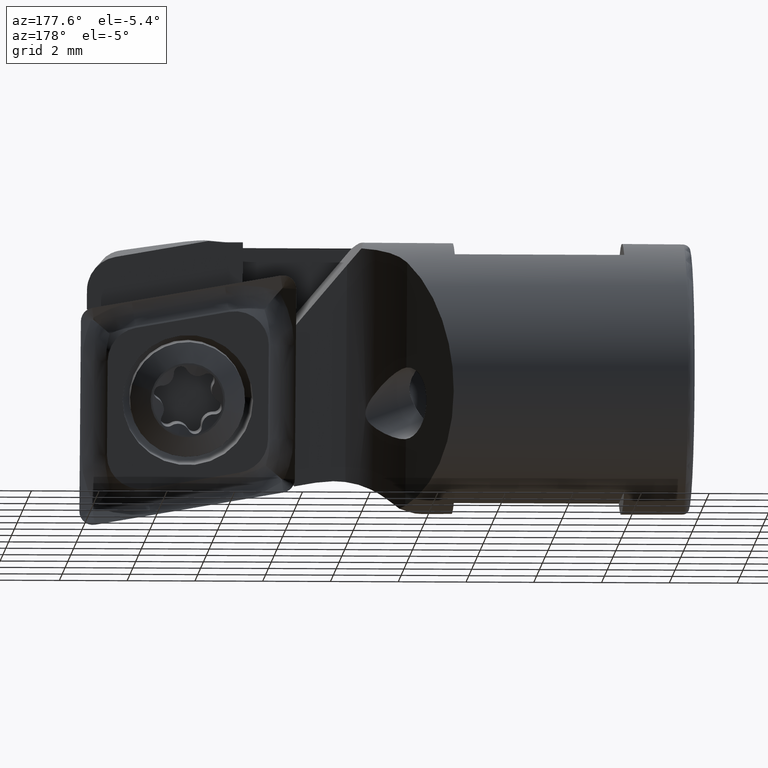
[diagram: clean part render]
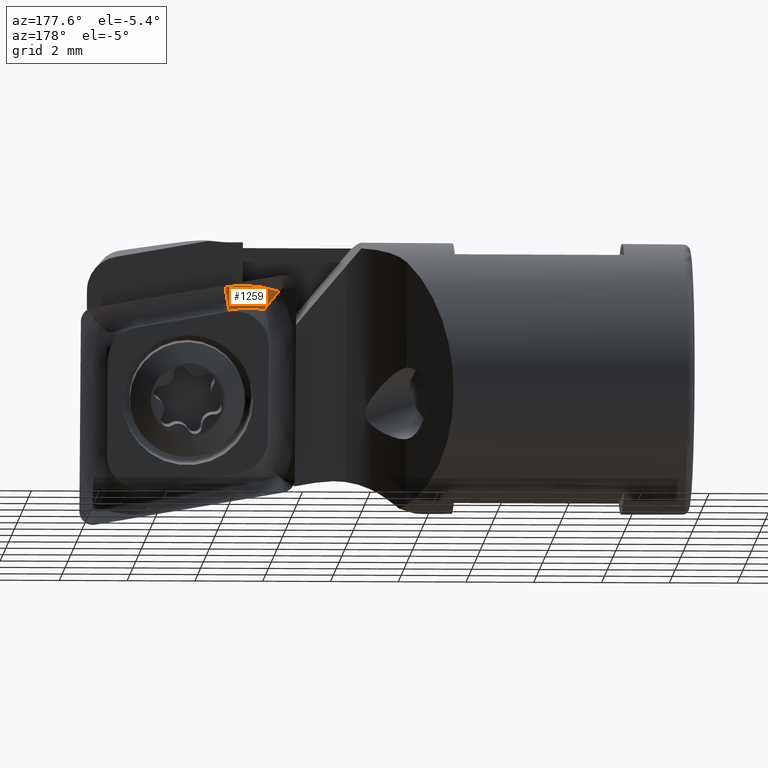
[diagram: same view with one face highlighted and labeled with its STEP entity id]
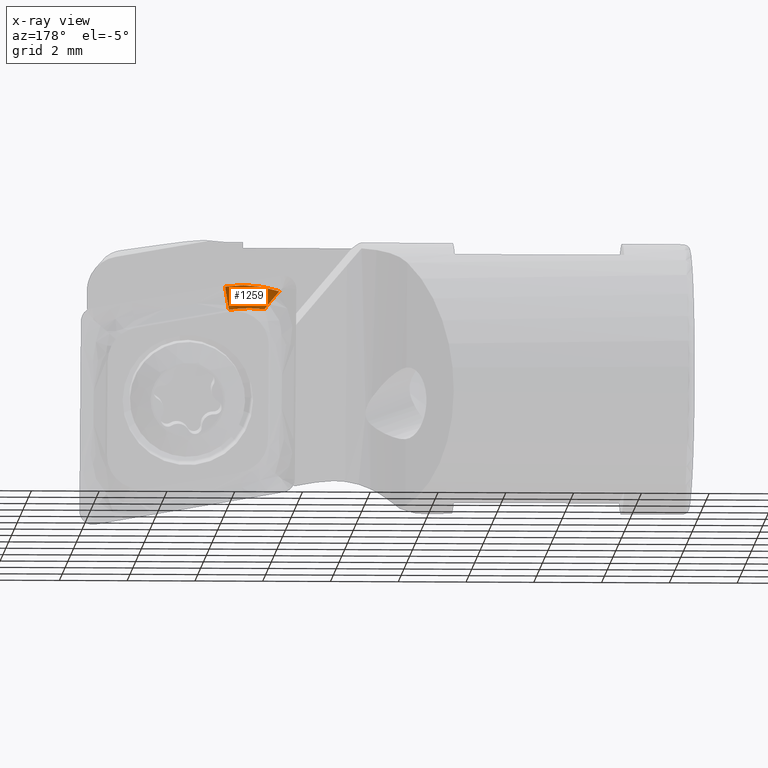
[diagram: x-ray of the same camera — body ghosted, the highlighted face saturated]
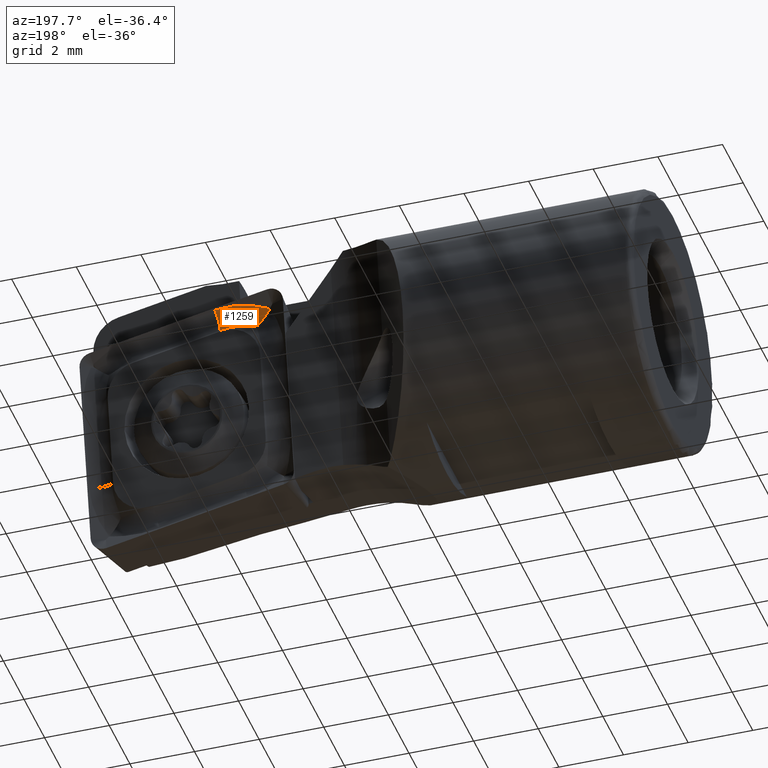
[diagram: same view with one face highlighted and labeled with its STEP entity id]
A machine part, auxiliary view. The second image highlights one B-rep face of the part: STEP entity #1259.
The next image is the same camera in x-ray: the body ghosted, the highlighted face saturated — about 0% of this face is hidden behind the body in this view.
A second angle (auxiliary view) of the same face is appended — the face is thin or edge-on in the first view.
In plain terms, the highlighted face is a freeform B-spline surface patch.
Its self-contained STEP definition (entity closure, byte-faithful):
#66 = EDGE_CURVE ( 'NONE', #2985, #3708, #4449, .T. ) ;
#71 = CARTESIAN_POINT ( 'NONE',  ( 3.410992432308228100, -0.02886751738946589900, 1.348541647578908500 ) ) ;
#286 = CARTESIAN_POINT ( 'NONE',  ( 3.291657324559015100, -0.2055400150372050900, 2.433975456562073700 ) ) ;
#414 = CARTESIAN_POINT ( 'NONE',  ( 2.679894967225762600, -0.2077197819886340800, 2.270039484478451700 ) ) ;
#431 = CARTESIAN_POINT ( 'NONE',  ( 3.017392044034138200, -0.2309401076758490800, 1.131892551266298300 ) ) ;
#452 = CARTESIAN_POINT ( 'NONE',  ( 3.203265948984379100, -0.2812508279293674500, 2.687859276355527800 ) ) ;
#615 =( BOUNDED_SURFACE ( )  B_SPLINE_SURFACE ( 3, 2, ( 
 ( #1498, #1861, #2585 ),
 ( #414, #2942, #772 ),
 ( #3329, #1151, #3683 ),
 ( #1520, #4043, #1874 ),
 ( #4415, #2245, #71 ),
 ( #2601, #431, #2961 ) ),
 .UNSPECIFIED., .F., .F., .F. ) 
 B_SPLINE_SURFACE_WITH_KNOTS ( ( 4, 2, 4 ),
 ( 3, 3 ),
 ( 0.002133416707546435000, 0.002964295721208302800, 0.003795174734870170900 ),
 ( 0.0000000000000000000, 1.000000000000000000 ),
 .UNSPECIFIED. ) 
 GEOMETRIC_REPRESENTATION_ITEM ( )  RATIONAL_B_SPLINE_SURFACE ( (
 ( 1.000000000000000000, 0.8999855168404906600, 1.000000000000000000),
 ( 1.000000000000000000, 0.8925019673346401600, 1.000000000000000000),
 ( 1.000000000000000000, 0.8842121647277071400, 1.000000000000000000),
 ( 1.000000000000000000, 0.8706929026059070400, 1.000000000000000000),
 ( 1.000000000000000000, 0.8659353509079164000, 1.000000000000000000),
 ( 1.000000000000000000, 0.8660254037844399300, 1.000000000000000000) ) ) 
 REPRESENTATION_ITEM ( '' )  SURFACE ( )  );
#761 = EDGE_LOOP ( 'NONE', ( #3542, #941, #3723, #3261 ) ) ;
#772 = CARTESIAN_POINT ( 'NONE',  ( 3.289226911287247200, -0.2078061332765658300, 2.442795255963649700 ) ) ;
#941 = ORIENTED_EDGE ( 'NONE', *, *, #2686, .F. ) ;
#1151 = CARTESIAN_POINT ( 'NONE',  ( 3.039751610165785800, -0.3129146389208550800, 2.076353525904001800 ) ) ;
#1259 = ADVANCED_FACE ( 'NONE', ( #3346 ), #615, .F. ) ;
#1319 = DIRECTION ( 'NONE',  ( 0.1736481776669340500, 6.237687501399918500E-017, 0.9848077530122074700 ) ) ;
#1340 = B_SPLINE_CURVE_WITH_KNOTS ( 'NONE', 3,
 ( #2886, #2185, #2545, #4010 ),
 .UNSPECIFIED., .F., .F.,
 ( 4, 4 ),
 ( -5.310367754572151800E-006, 0.0007094866165424903000 ),
 .UNSPECIFIED. ) ;
#1380 = CARTESIAN_POINT ( 'NONE',  ( 2.735490631386909400, -0.02886751345948179400, 1.548719863895783800 ) ) ;
#1498 = CARTESIAN_POINT ( 'NONE',  ( 2.624190589046405000, -0.2839712002198269100, 2.494980278510129200 ) ) ;
#1520 = CARTESIAN_POINT ( 'NONE',  ( 2.725614986036594800, -0.05357616028524529000, 1.609197304436297000 ) ) ;
#1566 = AXIS2_PLACEMENT_3D ( 'NONE', #3489, #1319, #3846 ) ;
#1717 = CARTESIAN_POINT ( 'NONE',  ( 3.362074757588408200, -0.02886751345948192900, 1.071115689082870800 ) ) ;
#1750 = VERTEX_POINT ( 'NONE', #4233 ) ;
#1861 = CARTESIAN_POINT ( 'NONE',  ( 2.925448770498989300, -0.4261945214195044200, 2.558018179064970100 ) ) ;
#1874 = CARTESIAN_POINT ( 'NONE',  ( 3.416721116185362100, -0.05357616348876759900, 1.627486600401243200 ) ) ;
#1944 = CARTESIAN_POINT ( 'NONE',  ( 2.733459079244133300, -0.1042626355399008700, 1.906939846692431700 ) ) ;
#2185 = CARTESIAN_POINT ( 'NONE',  ( 2.834276451620585400, -0.3237577532630464000, 2.378240325210186200 ) ) ;
#2245 = CARTESIAN_POINT ( 'NONE',  ( 3.058062210747261500, -0.2309401102798729300, 1.362544554323632300 ) ) ;
#2441 = CARTESIAN_POINT ( 'NONE',  ( 3.410734920563935000, -0.02886751345948210300, 1.347081186705605600 ) ) ;
#2449 = CARTESIAN_POINT ( 'NONE',  ( 3.356236073474353700, -0.1425308146713985000, 2.171735539172607000 ) ) ;
#2473 = CARTESIAN_POINT ( 'NONE',  ( 2.676207077559404500, -0.2046244621271051700, 2.245604371734118300 ) ) ;
#2545 = CARTESIAN_POINT ( 'NONE',  ( 3.030571597244934100, -0.3649133661284110200, 2.542951509504399100 ) ) ;
#2575 = CIRCLE ( 'NONE', #1566, 0.6999999999999999600 ) ;
#2576 = VERTEX_POINT ( 'NONE', #452 ) ;
#2585 = CARTESIAN_POINT ( 'NONE',  ( 3.200086025668309900, -0.2839712002198269100, 2.696959342409538200 ) ) ;
#2601 = CARTESIAN_POINT ( 'NONE',  ( 2.672709330479866400, -0.02886751345948209200, 1.192669413449724700 ) ) ;
#2657 = B_SPLINE_CURVE_WITH_KNOTS ( 'NONE', 3,
 ( #1717, #2441, #4618, #2449, #286, #2809 ),
 .UNSPECIFIED., .F., .F.,
 ( 4, 2, 4 ),
 ( 0.0000000000000000000, 0.0008295725712972618800, 0.001659145142594524400 ),
 .UNSPECIFIED. ) ;
#2686 = EDGE_CURVE ( 'NONE', #1750, #2576, #2657, .T. ) ;
#2809 = CARTESIAN_POINT ( 'NONE',  ( 3.203265948984379100, -0.2812508279293674500, 2.687859276355527800 ) ) ;
#2886 = CARTESIAN_POINT ( 'NONE',  ( 2.676207077559404500, -0.2046244621271051700, 2.245604371734118300 ) ) ;
#2942 = CARTESIAN_POINT ( 'NONE',  ( 2.995738808433946200, -0.3620110481766767300, 2.316455826334145500 ) ) ;
#2961 = CARTESIAN_POINT ( 'NONE',  ( 3.362074757588408200, -0.02886751345948209200, 1.071115689082871500 ) ) ;
#2985 = VERTEX_POINT ( 'NONE', #3348 ) ;
#3219 = EDGE_CURVE ( 'NONE', #3708, #1750, #2575, .T. ) ;
#3261 = ORIENTED_EDGE ( 'NONE', *, *, #66, .F. ) ;
#3312 = CARTESIAN_POINT ( 'NONE',  ( 2.672709330479865900, -0.02886751345948173100, 1.192669413449724700 ) ) ;
#3329 = CARTESIAN_POINT ( 'NONE',  ( 2.711217506139939300, -0.1441426480970946500, 2.048343516856120200 ) ) ;
#3346 = FACE_OUTER_BOUND ( 'NONE', #761, .T. ) ;
#3348 = CARTESIAN_POINT ( 'NONE',  ( 2.676207077559404500, -0.2046244621271051700, 2.245604371734118300 ) ) ;
#3489 = CARTESIAN_POINT ( 'NONE',  ( 3.017392044034136900, 0.5773502691896259500, 1.131892551266298100 ) ) ;
#3542 = ORIENTED_EDGE ( 'NONE', *, *, #4603, .T. ) ;
#3683 = CARTESIAN_POINT ( 'NONE',  ( 3.354805948564619600, -0.1441426448935723400, 2.179702071028471800 ) ) ;
#3708 = VERTEX_POINT ( 'NONE', #3312 ) ;
#3723 = ORIENTED_EDGE ( 'NONE', *, *, #3219, .F. ) ;
#3846 = DIRECTION ( 'NONE',  ( 0.9848077530122073500, 0.0000000000000000000, -0.1736481776669339700 ) ) ;
#4010 = CARTESIAN_POINT ( 'NONE',  ( 3.203265948984379100, -0.2812508279293674500, 2.687859276355527800 ) ) ;
#4043 = CARTESIAN_POINT ( 'NONE',  ( 3.071250535511432100, -0.2466070129054369100, 1.593608515721937500 ) ) ;
#4233 = CARTESIAN_POINT ( 'NONE',  ( 3.362074757588408200, -0.02886751345948192900, 1.071115689082870800 ) ) ;
#4415 = CARTESIAN_POINT ( 'NONE',  ( 2.709301184892793000, -0.02886751297774126400, 1.400192136932966600 ) ) ;
#4449 = B_SPLINE_CURVE_WITH_KNOTS ( 'NONE', 3,
 ( #2473, #1944, #1380, #4675 ),
 .UNSPECIFIED., .F., .F.,
 ( 4, 4 ),
 ( 0.0003167512216926960400, 0.001389867363087709300 ),
 .UNSPECIFIED. ) ;
#4603 = EDGE_CURVE ( 'NONE', #2985, #2576, #1340, .T. ) ;
#4618 = CARTESIAN_POINT ( 'NONE',  ( 3.416659782287673900, -0.05317489423033181000, 1.623136305159210900 ) ) ;
#4675 = CARTESIAN_POINT ( 'NONE',  ( 2.672709330479865900, -0.02886751345948173100, 1.192669413449724700 ) ) ;